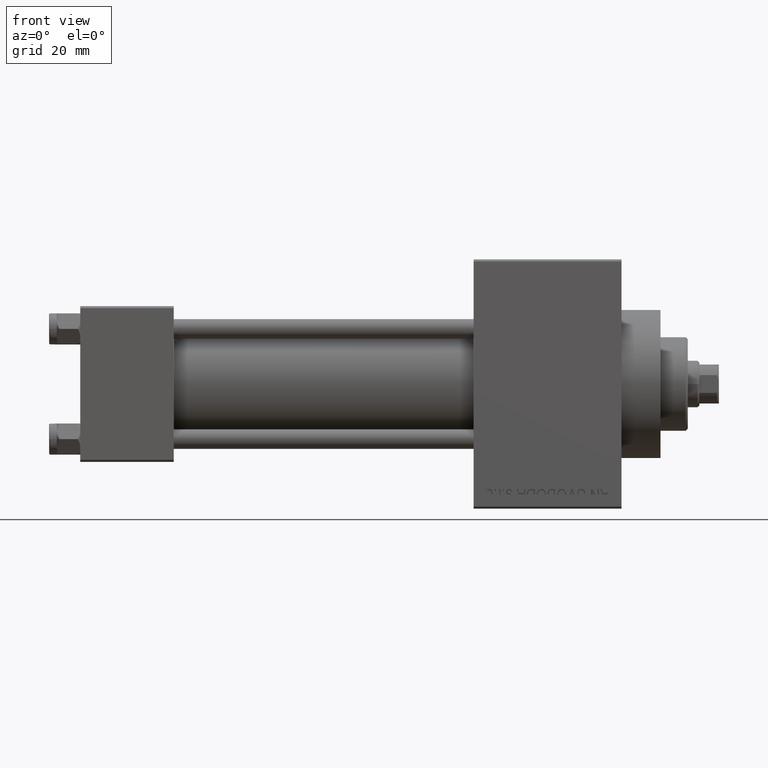
[diagram: clean part render]
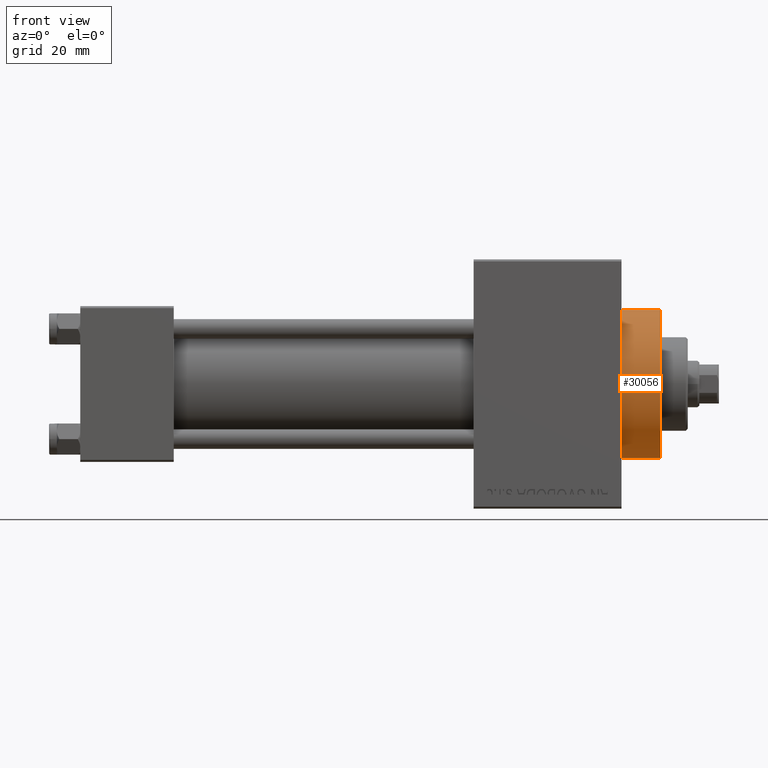
[diagram: same view with one face highlighted and labeled with its STEP entity id]
A machine part, front view. The second image highlights one B-rep face of the part: STEP entity #30056.
In plain terms, the highlighted cylindrical surface (partial cylindrical patch) has radius 19 mm, axis along (-1, -0, -0).
Its self-contained STEP definition (entity closure, byte-faithful):
#164 = VERTEX_POINT ( 'NONE', #46331 ) ;
#907 = EDGE_CURVE ( 'NONE', #21223, #164, #8012, .T. ) ;
#4046 = VECTOR ( 'NONE', #15616, 1000.000000000000000 ) ;
#4275 = CIRCLE ( 'NONE', #8847, 19.00000000000000000 ) ;
#4854 = EDGE_CURVE ( 'NONE', #43595, #37931, #25993, .T. ) ;
#5012 = ORIENTED_EDGE ( 'NONE', *, *, #26867, .F. ) ;
#7169 = CARTESIAN_POINT ( 'NONE',  ( 149.0000000000000284, 2.326828918379970970E-15, -19.00000000000000000 ) ) ;
#8012 = LINE ( 'NONE', #11567, #4046 ) ;
#8509 = DIRECTION ( 'NONE',  ( 0.000000000000000000, 0.000000000000000000, -1.000000000000000000 ) ) ;
#8847 = AXIS2_PLACEMENT_3D ( 'NONE', #31536, #12073, #8509 ) ;
#10340 = CARTESIAN_POINT ( 'NONE',  ( 149.0000000000000284, 0.000000000000000000, 19.00000000000000000 ) ) ;
#11567 = CARTESIAN_POINT ( 'NONE',  ( 149.0000000000000284, 0.000000000000000000, 19.00000000000000000 ) ) ;
#11654 = CYLINDRICAL_SURFACE ( 'NONE', #32383, 19.00000000000000000 ) ;
#12073 = DIRECTION ( 'NONE',  ( 1.000000000000000000, 0.000000000000000000, 0.000000000000000000 ) ) ;
#13265 = AXIS2_PLACEMENT_3D ( 'NONE', #25099, #37942, #33903 ) ;
#15616 = DIRECTION ( 'NONE',  ( -1.000000000000000000, -0.000000000000000000, -0.000000000000000000 ) ) ;
#21223 = VERTEX_POINT ( 'NONE', #10340 ) ;
#22123 = ORIENTED_EDGE ( 'NONE', *, *, #4854, .F. ) ;
#22384 = CIRCLE ( 'NONE', #13265, 19.00000000000000000 ) ;
#22419 = CARTESIAN_POINT ( 'NONE',  ( 149.0000000000000284, 2.326828918379970970E-15, -19.00000000000000000 ) ) ;
#22632 = CARTESIAN_POINT ( 'NONE',  ( 149.0000000000000284, 0.000000000000000000, 0.000000000000000000 ) ) ;
#25099 = CARTESIAN_POINT ( 'NONE',  ( 149.0000000000000284, 0.000000000000000000, 0.000000000000000000 ) ) ;
#25993 = LINE ( 'NONE', #22419, #40651 ) ;
#26444 = DIRECTION ( 'NONE',  ( 0.000000000000000000, 0.000000000000000000, 1.000000000000000000 ) ) ;
#26867 = EDGE_CURVE ( 'NONE', #21223, #43595, #22384, .T. ) ;
#29563 = DIRECTION ( 'NONE',  ( -1.000000000000000000, -0.000000000000000000, -0.000000000000000000 ) ) ;
#30056 = ADVANCED_FACE ( 'NONE', ( #37379 ), #11654, .T. ) ;
#30255 = DIRECTION ( 'NONE',  ( -1.000000000000000000, -0.000000000000000000, -0.000000000000000000 ) ) ;
#31536 = CARTESIAN_POINT ( 'NONE',  ( 139.0000000000000000, 0.000000000000000000, 0.000000000000000000 ) ) ;
#31799 = EDGE_LOOP ( 'NONE', ( #22123, #5012, #35877, #41686 ) ) ;
#32383 = AXIS2_PLACEMENT_3D ( 'NONE', #22632, #30255, #26444 ) ;
#33903 = DIRECTION ( 'NONE',  ( 0.000000000000000000, 0.000000000000000000, -1.000000000000000000 ) ) ;
#35877 = ORIENTED_EDGE ( 'NONE', *, *, #907, .T. ) ;
#37379 = FACE_OUTER_BOUND ( 'NONE', #31799, .T. ) ;
#37931 = VERTEX_POINT ( 'NONE', #39539 ) ;
#37942 = DIRECTION ( 'NONE',  ( 1.000000000000000000, 0.000000000000000000, 0.000000000000000000 ) ) ;
#39539 = CARTESIAN_POINT ( 'NONE',  ( 139.0000000000000000, 2.326828918379970970E-15, -19.00000000000000000 ) ) ;
#40610 = EDGE_CURVE ( 'NONE', #164, #37931, #4275, .T. ) ;
#40651 = VECTOR ( 'NONE', #29563, 1000.000000000000000 ) ;
#41686 = ORIENTED_EDGE ( 'NONE', *, *, #40610, .T. ) ;
#43595 = VERTEX_POINT ( 'NONE', #7169 ) ;
#46331 = CARTESIAN_POINT ( 'NONE',  ( 139.0000000000000000, 0.000000000000000000, 19.00000000000000000 ) ) ;